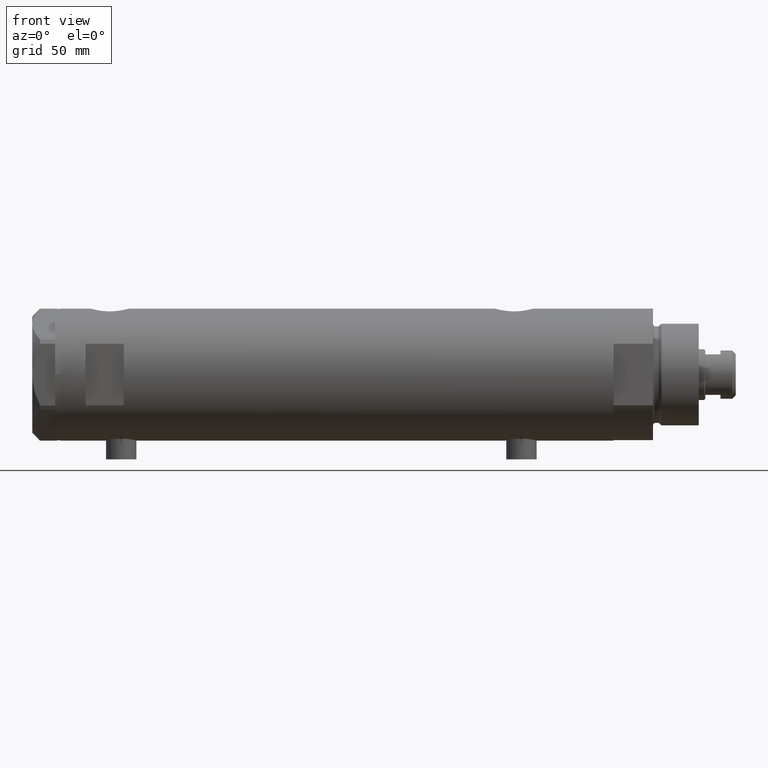
[diagram: clean part render]
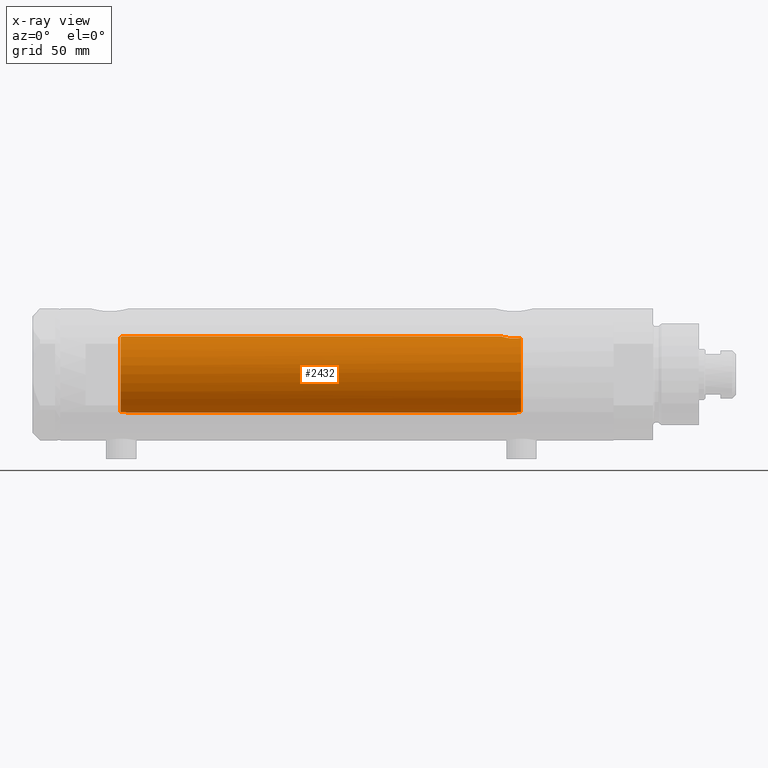
[diagram: x-ray — body ghosted, one internal face saturated and labeled with its STEP entity id]
A machine part, front view, then the same camera in x-ray: the body is ghosted and one INTERNAL B-rep face — a face not visible from any outside direction — is saturated and labeled: STEP entity #2432.
In plain terms, the highlighted cylindrical surface (partial cylindrical patch) has radius 15 mm, axis along (1, 0, -0).
Its self-contained STEP definition (entity closure, byte-faithful):
#50 = CARTESIAN_POINT ( 'NONE',  ( 14.19858338301463085, -4.837406781463694294, -69.18614104090498529 ) ) ;
#52 = VERTEX_POINT ( 'NONE', #3273 ) ;
#100 = CARTESIAN_POINT ( 'NONE',  ( 14.64727859494137263, -3.248701865452405801, -66.10174013696655493 ) ) ;
#109 = CARTESIAN_POINT ( 'NONE',  ( -14.95054302956255654, -1.224431043437672617, -70.46458290830103977 ) ) ;
#125 = CARTESIAN_POINT ( 'NONE',  ( 14.23984499268011561, -4.714778477509576682, -68.53008258614765680 ) ) ;
#429 = CARTESIAN_POINT ( 'NONE',  ( -15.00000000000000000, 3.061618116097013428E-16, 82.44999999999998863 ) ) ;
#439 = CARTESIAN_POINT ( 'NONE',  ( 14.30602371879160728, -4.510400617436905790, -71.58665028800270136 ) ) ;
#453 = ORIENTED_EDGE ( 'NONE', *, *, #5102, .F. ) ;
#495 = CARTESIAN_POINT ( 'NONE',  ( 14.42796883436190392, -4.108435602805834641, -67.10726922759032220 ) ) ;
#554 = FACE_OUTER_BOUND ( 'NONE', #4849, .T. ) ;
#719 = CARTESIAN_POINT ( 'NONE',  ( -14.83314878996174357, -2.232849285003160489, 83.81256080311605672 ) ) ;
#771 = CARTESIAN_POINT ( 'NONE',  ( -14.82167156606024427, -2.306788152106017176, 83.97115114601639618 ) ) ;
#835 = CARTESIAN_POINT ( 'NONE',  ( 14.20926245015525957, -4.806160851464704287, -68.96377327795615031 ) ) ;
#849 = VERTEX_POINT ( 'NONE', #1859 ) ;
#883 = CARTESIAN_POINT ( 'NONE',  ( 14.81710879718118079, -2.343063746046463613, -65.48067662538953471 ) ) ;
#925 = DIRECTION ( 'NONE',  ( 0.000000000000000000, 0.000000000000000000, -1.000000000000000000 ) ) ;
#932 = CARTESIAN_POINT ( 'NONE',  ( 14.96064712090283955, -1.106639041422192049, -65.00738179736373468 ) ) ;
#974 = CARTESIAN_POINT ( 'NONE',  ( 14.92029983160078466, -1.555365312915180098, 84.83609703141414116 ) ) ;
#1091 = CARTESIAN_POINT ( 'NONE',  ( -15.00000000000000000, 0.000000000000000000, -70.15000000000000568 ) ) ;
#1107 = CARTESIAN_POINT ( 'NONE',  ( -14.98541608527169977, -0.6823644196029188258, 82.53879464417549627 ) ) ;
#1134 = VECTOR ( 'NONE', #4885, 1000.000000000000000 ) ;
#1230 = CARTESIAN_POINT ( 'NONE',  ( 14.20819413761016037, -4.809312895991457282, -70.51713251522167525 ) ) ;
#1259 = DIRECTION ( 'NONE',  ( -1.000000000000000000, 0.000000000000000000, 0.000000000000000000 ) ) ;
#1322 = CARTESIAN_POINT ( 'NONE',  ( 0.000000000000000000, 0.000000000000000000, -72.54999999999999716 ) ) ;
#1327 = VERTEX_POINT ( 'NONE', #1813 ) ;
#1333 = CARTESIAN_POINT ( 'NONE',  ( 14.90017778876745247, -1.739641523727897710, -65.20130925695124802 ) ) ;
#1368 = CARTESIAN_POINT ( 'NONE',  ( 15.00000000000000000, 0.000000000000000000, 84.58500000000000796 ) ) ;
#1421 = B_SPLINE_CURVE_WITH_KNOTS ( 'NONE', 3,
 ( #1761, #4971, #2974, #4576, #2585, #4189, #109, #4916, #2190, #4130, #3391, #2509, #2531, #2873, #2477, #4078 ),
 .UNSPECIFIED., .F., .F.,
 ( 4, 2, 2, 2, 2, 2, 2, 4 ),
 ( 0.000000000000000000, 0.0004769863284873165476, 0.0009539726569746333120, 0.001430958985461950076, 0.001907945313949267058, 0.002384931642436583822, 0.002861917970923900153, 0.003815890627898496819 ),
 .UNSPECIFIED. ) ;
#1433 = ORIENTED_EDGE ( 'NONE', *, *, #1489, .F. ) ;
#1478 = AXIS2_PLACEMENT_3D ( 'NONE', #2927, #3365, #1259 ) ;
#1489 = EDGE_CURVE ( 'NONE', #52, #849, #3539, .T. ) ;
#1518 = CARTESIAN_POINT ( 'NONE',  ( 15.00000000000000000, 5.959273473684245944E-16, -64.88500000000000512 ) ) ;
#1589 = CARTESIAN_POINT ( 'NONE',  ( -14.91608554980932233, -1.590576762727821558, 83.01369720243327777 ) ) ;
#1684 = VERTEX_POINT ( 'NONE', #2591 ) ;
#1686 = CARTESIAN_POINT ( 'NONE',  ( 14.82638779339053769, -2.275571356824481750, 85.15000000000000568 ) ) ;
#1732 = LINE ( 'NONE', #3342, #1134 ) ;
#1761 = CARTESIAN_POINT ( 'NONE',  ( -15.00000000000000000, 0.000000000000000000, -70.15000000000000568 ) ) ;
#1777 = ORIENTED_EDGE ( 'NONE', *, *, #2168, .T. ) ;
#1813 = CARTESIAN_POINT ( 'NONE',  ( 15.00000000000000000, 0.000000000000000000, 84.58500000000000796 ) ) ;
#1859 = CARTESIAN_POINT ( 'NONE',  ( -15.00000000000000000, 3.061618116097013428E-16, 82.44999999999998863 ) ) ;
#1932 = CARTESIAN_POINT ( 'NONE',  ( -14.78924132900106692, -2.505700361584517921, 84.97913437470931797 ) ) ;
#1988 = DIRECTION ( 'NONE',  ( -0.000000000000000000, -0.000000000000000000, -1.000000000000000000 ) ) ;
#2044 = CARTESIAN_POINT ( 'NONE',  ( 15.00000000000000888, -0.2216692655473423146, -64.88500000000003354 ) ) ;
#2108 = CARTESIAN_POINT ( 'NONE',  ( 15.00000000000000355, -0.3999014018875933218, 84.58499999999999375 ) ) ;
#2144 = ORIENTED_EDGE ( 'NONE', *, *, #3546, .T. ) ;
#2168 = EDGE_CURVE ( 'NONE', #3169, #4698, #3904, .T. ) ;
#2190 = CARTESIAN_POINT ( 'NONE',  ( -14.91288509639097271, -1.618377549727019415, -70.73790984008952876 ) ) ;
#2257 = CARTESIAN_POINT ( 'NONE',  ( 0.000000000000000000, 0.000000000000000000, 85.15000000000000568 ) ) ;
#2334 = CARTESIAN_POINT ( 'NONE',  ( -14.95581892566389470, -1.161262481484110154, 82.72937042154403287 ) ) ;
#2358 = CARTESIAN_POINT ( 'NONE',  ( -14.97699254061833152, -0.8454257663520229338, 82.59097868826833633 ) ) ;
#2402 = AXIS2_PLACEMENT_3D ( 'NONE', #1322, #925, #2536 ) ;
#2432 = ADVANCED_FACE ( 'NONE', ( #554 ), #4865, .F. ) ;
#2435 = CARTESIAN_POINT ( 'NONE',  ( -14.79723843696374885, -2.458094276708257642, 84.46231574989086255 ) ) ;
#2444 = CARTESIAN_POINT ( 'NONE',  ( 14.33594561531104006, -4.414979644548150617, -67.69453393419244946 ) ) ;
#2463 = EDGE_CURVE ( 'NONE', #1327, #3277, #1732, .T. ) ;
#2477 = CARTESIAN_POINT ( 'NONE',  ( -14.79268570220017942, -2.485279885960850699, -72.23227165314102649 ) ) ;
#2497 = CARTESIAN_POINT ( 'NONE',  ( 14.19797987272029793, -4.839174951492910992, -70.29741451501413962 ) ) ;
#2509 = CARTESIAN_POINT ( 'NONE',  ( -14.84760220014584498, -2.134792770974425213, -71.33921818480344257 ) ) ;
#2531 = CARTESIAN_POINT ( 'NONE',  ( -14.83575030094399771, -2.214690538106026452, -71.47938890130201628 ) ) ;
#2536 = DIRECTION ( 'NONE',  ( -1.000000000000000000, 0.000000000000000000, 0.000000000000000000 ) ) ;
#2545 = CARTESIAN_POINT ( 'NONE',  ( 14.97537530859972321, -0.8874117095427768165, -64.96137464055831856 ) ) ;
#2585 = CARTESIAN_POINT ( 'NONE',  ( -14.98007298506453822, -0.7870736506658174703, -70.27174868555717069 ) ) ;
#2591 = CARTESIAN_POINT ( 'NONE',  ( 14.82638779339053769, -2.275571356824481750, 85.15000000000000568 ) ) ;
#2797 = CARTESIAN_POINT ( 'NONE',  ( -14.99695275358353719, -0.3460123648701097787, 82.46810396824247391 ) ) ;
#2810 = ORIENTED_EDGE ( 'NONE', *, *, #2463, .T. ) ;
#2828 = ORIENTED_EDGE ( 'NONE', *, *, #3851, .F. ) ;
#2832 = AXIS2_PLACEMENT_3D ( 'NONE', #2257, #3458, #4562 ) ;
#2840 = CARTESIAN_POINT ( 'NONE',  ( 14.39424372609267877, -4.221002267729139668, -72.17893131093291004 ) ) ;
#2873 = CARTESIAN_POINT ( 'NONE',  ( -14.80570803900864085, -2.410056876876593979, -71.91354637206102041 ) ) ;
#2886 = CARTESIAN_POINT ( 'NONE',  ( 14.46277203719950677, -3.978470183374508640, -72.54999999999999716 ) ) ;
#2927 = CARTESIAN_POINT ( 'NONE',  ( 0.000000000000000000, 0.000000000000000000, 108.9499999999999886 ) ) ;
#2931 = CARTESIAN_POINT ( 'NONE',  ( 14.98404828787190901, -0.7909490205761858794, 84.63356230794190083 ) ) ;
#2942 = CARTESIAN_POINT ( 'NONE',  ( 14.92307637240704032, -1.532123959568890692, -65.12726557582080034 ) ) ;
#2974 = CARTESIAN_POINT ( 'NONE',  ( -14.99740058099026108, -0.3199290537848277771, -70.16546469274585718 ) ) ;
#3005 = EDGE_CURVE ( 'NONE', #3169, #3277, #4114, .T. ) ;
#3008 = CARTESIAN_POINT ( 'NONE',  ( 14.85289483991917692, -2.102865829523694607, 85.05860377881607803 ) ) ;
#3143 = LINE ( 'NONE', #4747, #4505 ) ;
#3166 = CARTESIAN_POINT ( 'NONE',  ( -14.78989771875220072, -2.501882951377193187, 84.80631597653685105 ) ) ;
#3169 = VERTEX_POINT ( 'NONE', #5064 ) ;
#3258 = CARTESIAN_POINT ( 'NONE',  ( 14.18786347641750112, -4.868757996482119488, -69.63322300400297138 ) ) ;
#3273 = CARTESIAN_POINT ( 'NONE',  ( -14.79155164274526157, -2.491987158875416775, 85.15000000000000568 ) ) ;
#3277 = VERTEX_POINT ( 'NONE', #1518 ) ;
#3342 = CARTESIAN_POINT ( 'NONE',  ( 15.00000000000000000, 1.836970198721029589E-15, 108.9499999999999886 ) ) ;
#3365 = DIRECTION ( 'NONE',  ( -0.000000000000000000, -0.000000000000000000, -1.000000000000000000 ) ) ;
#3391 = CARTESIAN_POINT ( 'NONE',  ( -14.87290636797879628, -1.950714596786584654, -71.07831246618854948 ) ) ;
#3458 = DIRECTION ( 'NONE',  ( 0.000000000000000000, 0.000000000000000000, 1.000000000000000000 ) ) ;
#3534 = CARTESIAN_POINT ( 'NONE',  ( -14.99999999999999822, -0.1716226368084284859, 82.45000000000001705 ) ) ;
#3539 = B_SPLINE_CURVE_WITH_KNOTS ( 'NONE', 3,
 ( #3558, #1932, #3166, #2435, #4715, #771, #719, #4740, #5196, #4033, #1589, #4817, #2334, #2358, #1107, #2797, #3534, #429 ),
 .UNSPECIFIED., .F., .F.,
 ( 4, 2, 2, 2, 2, 2, 2, 2, 4 ),
 ( 0.003715686714229614416, 0.004229951999599971396, 0.004744217284970328810, 0.005258482570340686224, 0.005772747855711043638, 0.006287013141081401052, 0.006801278426451758466, 0.007315543711822115880, 0.007829808997192473294 ),
 .UNSPECIFIED. ) ;
#3546 = EDGE_CURVE ( 'NONE', #52, #1684, #3833, .T. ) ;
#3558 = CARTESIAN_POINT ( 'NONE',  ( -14.79155164274526157, -2.491987158875416775, 85.15000000000000568 ) ) ;
#3648 = CARTESIAN_POINT ( 'NONE',  ( 15.00000000000000000, 5.959273473684245944E-16, -64.88500000000000512 ) ) ;
#3737 = CARTESIAN_POINT ( 'NONE',  ( 14.93900636919600089, -1.364886281976675386, 84.77622504971314754 ) ) ;
#3833 = CIRCLE ( 'NONE', #2832, 15.00000000000000000 ) ;
#3851 = EDGE_CURVE ( 'NONE', #5118, #4698, #1421, .T. ) ;
#3904 = CIRCLE ( 'NONE', #2402, 15.00000000000000000 ) ;
#3913 = CARTESIAN_POINT ( 'NONE',  ( -14.79053751558745589, -2.497999199359367761, -72.54999999999999716 ) ) ;
#4006 = EDGE_CURVE ( 'NONE', #1327, #1684, #5191, .T. ) ;
#4033 = CARTESIAN_POINT ( 'NONE',  ( -14.90147761301467710, -1.720422196468680776, 83.12794212931564175 ) ) ;
#4043 = CARTESIAN_POINT ( 'NONE',  ( 14.84733308118440398, -2.144376633039211999, -65.37751912952717248 ) ) ;
#4068 = CARTESIAN_POINT ( 'NONE',  ( 14.49994286062941384, -3.853373987417223034, -66.74743896782911179 ) ) ;
#4078 = CARTESIAN_POINT ( 'NONE',  ( -14.79053751558745589, -2.497999199359367761, -72.54999999999999716 ) ) ;
#4097 = CARTESIAN_POINT ( 'NONE',  ( 14.33349657381506148, -4.422893686125038748, -71.78827841538880250 ) ) ;
#4114 = B_SPLINE_CURVE_WITH_KNOTS ( 'NONE', 3,
 ( #2886, #4831, #2840, #4097, #439, #4465, #4119, #1230, #2497, #4878, #3258, #50, #835, #125, #4858, #4442, #2444, #495, #4068, #100, #4937, #883, #4043, #1333, #2942, #932, #2545, #4146, #2044, #3648 ),
 .UNSPECIFIED., .F., .F.,
 ( 4, 2, 2, 2, 2, 2, 2, 2, 2, 2, 2, 2, 2, 2, 4 ),
 ( 0.004672505804584295430, 0.005337629501999315365, 0.006002753199414335300, 0.006667876896829355235, 0.007333000594244375170, 0.007998124291659395105, 0.008663247989074415040, 0.009328371686489433240, 0.009993495383904454910, 0.01132374277873445662, 0.01265399017356445832, 0.01331911387097945050, 0.01398423756839444268, 0.01464936126580943312, 0.01531448496322442530 ),
 .UNSPECIFIED. ) ;
#4119 = CARTESIAN_POINT ( 'NONE',  ( 14.23846660849503110, -4.718934182878724570, -70.95401121469809880 ) ) ;
#4130 = CARTESIAN_POINT ( 'NONE',  ( -14.88625129008227077, -1.847379311388074097, -70.95812992433161526 ) ) ;
#4146 = CARTESIAN_POINT ( 'NONE',  ( 14.99508877558422881, -0.4434836953032569862, -64.90007684727665094 ) ) ;
#4189 = CARTESIAN_POINT ( 'NONE',  ( -14.96154495298569387, -1.083625483837070025, -70.39138979525010598 ) ) ;
#4442 = CARTESIAN_POINT ( 'NONE',  ( 14.30772250772360366, -4.505024017690372418, -67.90010806953213773 ) ) ;
#4465 = CARTESIAN_POINT ( 'NONE',  ( 14.25856516724843637, -4.658255869285517825, -71.17044016644935311 ) ) ;
#4505 = VECTOR ( 'NONE', #1988, 1000.000000000000000 ) ;
#4552 = CARTESIAN_POINT ( 'NONE',  ( 14.87720562886503828, -1.924385875533403789, 84.97741675737692901 ) ) ;
#4562 = DIRECTION ( 'NONE',  ( 1.000000000000000000, 0.000000000000000000, 0.000000000000000000 ) ) ;
#4576 = CARTESIAN_POINT ( 'NONE',  ( -14.98749134158486740, -0.6320459414166045287, -70.22599747929442060 ) ) ;
#4599 = ORIENTED_EDGE ( 'NONE', *, *, #3005, .F. ) ;
#4670 = ORIENTED_EDGE ( 'NONE', *, *, #4006, .F. ) ;
#4698 = VERTEX_POINT ( 'NONE', #3913 ) ;
#4715 = CARTESIAN_POINT ( 'NONE',  ( -14.80379558280398200, -2.418854260473059181, 84.29535450491661663 ) ) ;
#4740 = CARTESIAN_POINT ( 'NONE',  ( -14.85859683553260879, -2.056701007386124491, 83.51843972450893716 ) ) ;
#4747 = CARTESIAN_POINT ( 'NONE',  ( -15.00000000000000000, 0.000000000000000000, 108.9499999999999886 ) ) ;
#4817 = CARTESIAN_POINT ( 'NONE',  ( -14.94313933514151493, -1.312299271472202600, 82.81526966946924517 ) ) ;
#4831 = CARTESIAN_POINT ( 'NONE',  ( 14.42775250319759728, -4.105775281508738495, -72.36911445102909113 ) ) ;
#4849 = EDGE_LOOP ( 'NONE', ( #4670, #2810, #4599, #1777, #2828, #453, #1433, #2144 ) ) ;
#4858 = CARTESIAN_POINT ( 'NONE',  ( 14.25977760983849763, -4.654557688538883298, -68.31736805897654108 ) ) ;
#4865 = CYLINDRICAL_SURFACE ( 'NONE', #1478, 15.00000000000000000 ) ;
#4878 = CARTESIAN_POINT ( 'NONE',  ( 14.18781489734108270, -4.868896704194244585, -69.85545969036061820 ) ) ;
#4885 = DIRECTION ( 'NONE',  ( -0.000000000000000000, -0.000000000000000000, -1.000000000000000000 ) ) ;
#4916 = CARTESIAN_POINT ( 'NONE',  ( -14.92627313122706134, -1.491421694539947440, -70.63730514635739155 ) ) ;
#4937 = CARTESIAN_POINT ( 'NONE',  ( 14.72015646623406049, -2.909233045280597896, -65.82572079632734585 ) ) ;
#4971 = CARTESIAN_POINT ( 'NONE',  ( -14.99999999999999822, -0.1613061104920442967, -70.15000000000000568 ) ) ;
#5064 = CARTESIAN_POINT ( 'NONE',  ( 14.46277203719950677, -3.978470183374508640, -72.54999999999999716 ) ) ;
#5102 = EDGE_CURVE ( 'NONE', #849, #5118, #3143, .T. ) ;
#5118 = VERTEX_POINT ( 'NONE', #1091 ) ;
#5191 = B_SPLINE_CURVE_WITH_KNOTS ( 'NONE', 3,
 ( #1368, #2108, #2931, #3737, #974, #4552, #3008, #1686 ),
 .UNSPECIFIED., .F., .F.,
 ( 4, 2, 2, 4 ),
 ( 0.000000000000000000, 0.001182100180564268996, 0.001773150270846398724, 0.002364200361128528886 ),
 .UNSPECIFIED. ) ;
#5196 = CARTESIAN_POINT ( 'NONE',  ( -14.87260732106556382, -1.954338522023922220, 83.38146298750766050 ) ) ;